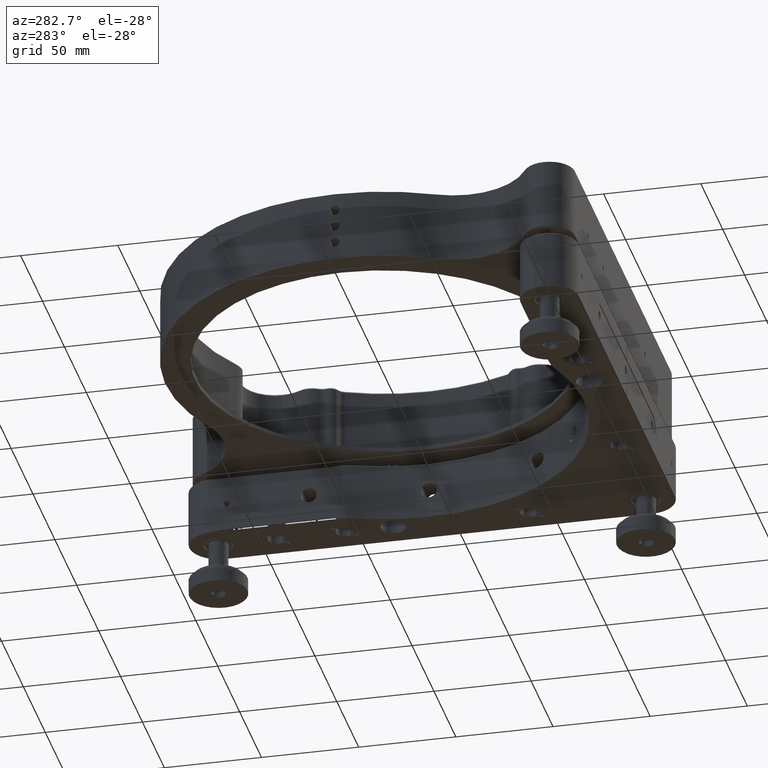
[diagram: clean part render]
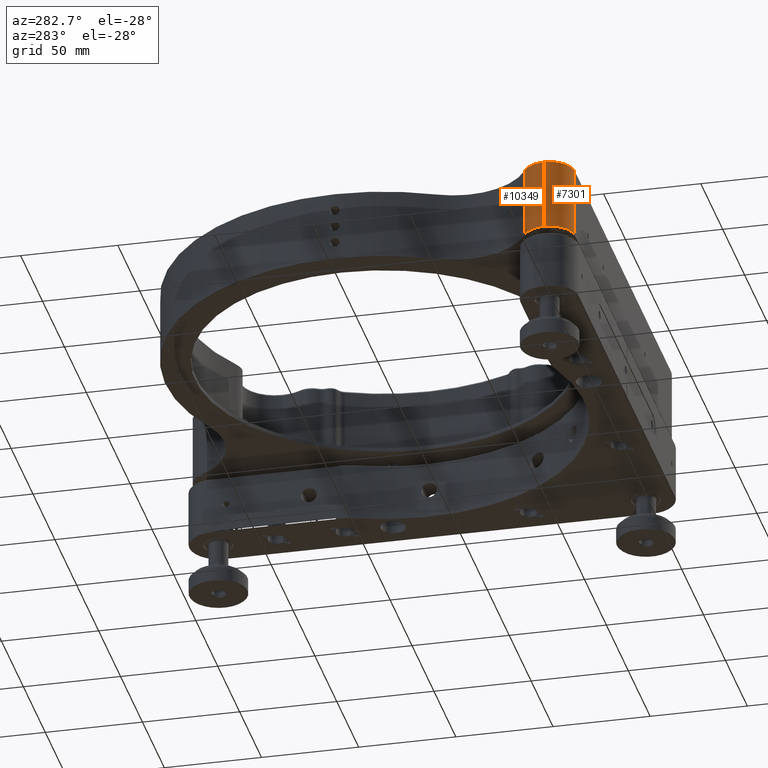
[diagram: same view with one multi-face feature highlighted, each face labeled with its STEP entity id]
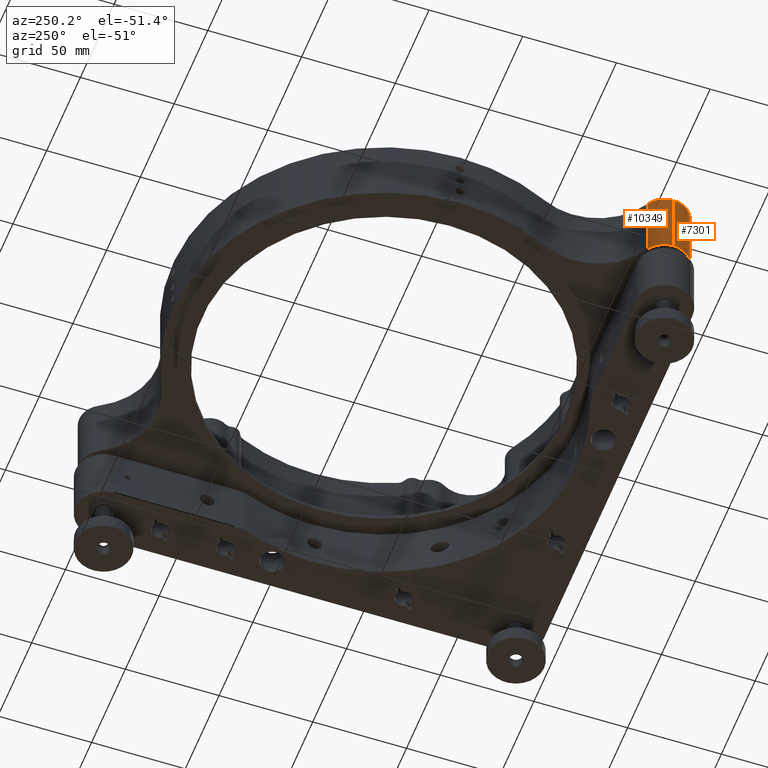
[diagram: same view with one multi-face feature highlighted, each face labeled with its STEP entity id]
A machine part, auxiliary view. The highlighted faces form ONE feature: a constant-radius fillet chain: 2 tangent blend faces with common blend radius 13 mm. The faces share edges in the B-rep.
A second angle (auxiliary view) of the same feature is appended — it is thin or edge-on in the first view.
Their STEP definitions:
[1] entity #10349 (Cylinder):
#575 = VECTOR ( 'NONE', #12259, 1000.000000000000000 ) ;
#685 = EDGE_LOOP ( 'NONE', ( #14081, #1161, #9410, #10914 ) ) ;
#799 = VERTEX_POINT ( 'NONE', #11087 ) ;
#840 = AXIS2_PLACEMENT_3D ( 'NONE', #7386, #8277, #6172 ) ;
#1161 = ORIENTED_EDGE ( 'NONE', *, *, #6773, .F. ) ;
#1786 = AXIS2_PLACEMENT_3D ( 'NONE', #13748, #3901, #8294 ) ;
#2347 = EDGE_CURVE ( 'NONE', #6020, #799, #3435, .T. ) ;
#3435 = LINE ( 'NONE', #10047, #575 ) ;
#3636 = CIRCLE ( 'NONE', #1786, 12.99999999999995559 ) ;
#3808 = DIRECTION ( 'NONE',  ( -4.973263948100216774E-30, -1.224646799147301438E-16, -1.000000000000000000 ) ) ;
#3901 = DIRECTION ( 'NONE',  ( 4.973263948100216774E-30, 1.224646799147301438E-16, 1.000000000000000000 ) ) ;
#4450 = VERTEX_POINT ( 'NONE', #4651 ) ;
#4651 = CARTESIAN_POINT ( 'NONE',  ( -247.9999999999988347, 15.00000000000073186, 56.50000000000000711 ) ) ;
#4707 = CARTESIAN_POINT ( 'NONE',  ( -247.9999999999987779, 15.00000000000073541, 56.50100000000001188 ) ) ;
#5196 = CIRCLE ( 'NONE', #840, 12.99999999999995559 ) ;
#5678 = FACE_OUTER_BOUND ( 'NONE', #685, .T. ) ;
#5945 = AXIS2_PLACEMENT_3D ( 'NONE', #11423, #3808, #7915 ) ;
#6020 = VERTEX_POINT ( 'NONE', #10828 ) ;
#6172 = DIRECTION ( 'NONE',  ( 1.000000000000000000, 0.000000000000000000, 0.000000000000000000 ) ) ;
#6773 = EDGE_CURVE ( 'NONE', #6020, #4450, #3636, .T. ) ;
#7386 = CARTESIAN_POINT ( 'NONE',  ( -234.9999999999988347, 15.00000000000099831, 20.00000000000008171 ) ) ;
#7915 = DIRECTION ( 'NONE',  ( -1.000000000000000000, 0.000000000000000000, 0.000000000000000000 ) ) ;
#8277 = DIRECTION ( 'NONE',  ( 4.973263948100216774E-30, 1.224646799147301438E-16, 1.000000000000000000 ) ) ;
#8294 = DIRECTION ( 'NONE',  ( 1.000000000000000000, 0.000000000000000000, 0.000000000000000000 ) ) ;
#8900 = EDGE_CURVE ( 'NONE', #4450, #12418, #9229, .T. ) ;
#9229 = LINE ( 'NONE', #4707, #14145 ) ;
#9389 = EDGE_CURVE ( 'NONE', #799, #12418, #5196, .T. ) ;
#9410 = ORIENTED_EDGE ( 'NONE', *, *, #2347, .T. ) ;
#10047 = CARTESIAN_POINT ( 'NONE',  ( -241.3630215803100896, 26.33631140929493242, 56.50100000000001188 ) ) ;
#10141 = CYLINDRICAL_SURFACE ( 'NONE', #5945, 12.99999999999995559 ) ;
#10349 = ADVANCED_FACE ( 'NONE', ( #5678 ), #10141, .T. ) ;
#10480 = CARTESIAN_POINT ( 'NONE',  ( -247.9999999999988347, 15.00000000000073186, 20.00000000000008171 ) ) ;
#10828 = CARTESIAN_POINT ( 'NONE',  ( -241.3630215803100896, 26.33631140929493242, 56.50000000000000711 ) ) ;
#10914 = ORIENTED_EDGE ( 'NONE', *, *, #9389, .T. ) ;
#11087 = CARTESIAN_POINT ( 'NONE',  ( -241.3630215803100896, 26.33631140929500347, 20.00000000000001066 ) ) ;
#11423 = CARTESIAN_POINT ( 'NONE',  ( -234.9999999999988347, 15.00000000000073541, 56.50100000000001188 ) ) ;
#12259 = DIRECTION ( 'NONE',  ( -4.973263948100216774E-30, -1.224646799147301438E-16, -1.000000000000000000 ) ) ;
#12418 = VERTEX_POINT ( 'NONE', #10480 ) ;
#12531 = DIRECTION ( 'NONE',  ( -4.973263948100216774E-30, -1.224646799147301438E-16, -1.000000000000000000 ) ) ;
#13748 = CARTESIAN_POINT ( 'NONE',  ( -234.9999999999988347, 15.00000000000073541, 56.50000000000000711 ) ) ;
#14081 = ORIENTED_EDGE ( 'NONE', *, *, #8900, .F. ) ;
#14145 = VECTOR ( 'NONE', #12531, 1000.000000000000000 ) ;
[2] entity #7301 (Cylinder):
#193 = DIRECTION ( 'NONE',  ( 4.973263948100216774E-30, 1.224646799147301438E-16, 1.000000000000000000 ) ) ;
#247 = CARTESIAN_POINT ( 'NONE',  ( -234.9999999999988347, 15.00000000000099831, 20.00000000000008171 ) ) ;
#1091 = VERTEX_POINT ( 'NONE', #8657 ) ;
#1166 = CYLINDRICAL_SURFACE ( 'NONE', #13652, 12.99999999999995559 ) ;
#1273 = DIRECTION ( 'NONE',  ( -4.973263948100216774E-30, -1.224646799147301438E-16, -1.000000000000000000 ) ) ;
#1843 = VECTOR ( 'NONE', #1273, 1000.000000000000000 ) ;
#2330 = EDGE_CURVE ( 'NONE', #4450, #1091, #9377, .T. ) ;
#2620 = EDGE_LOOP ( 'NONE', ( #9687, #7879, #13957, #12135 ) ) ;
#4063 = CARTESIAN_POINT ( 'NONE',  ( -234.9999999999988347, 15.00000000000073541, 56.50000000000000711 ) ) ;
#4450 = VERTEX_POINT ( 'NONE', #4651 ) ;
#4545 = FACE_OUTER_BOUND ( 'NONE', #2620, .T. ) ;
#4651 = CARTESIAN_POINT ( 'NONE',  ( -247.9999999999988347, 15.00000000000073186, 56.50000000000000711 ) ) ;
#4707 = CARTESIAN_POINT ( 'NONE',  ( -247.9999999999987779, 15.00000000000073541, 56.50100000000001188 ) ) ;
#5544 = CARTESIAN_POINT ( 'NONE',  ( -234.9999999999988347, 15.00000000000073541, 56.50100000000001188 ) ) ;
#5650 = DIRECTION ( 'NONE',  ( 1.000000000000000000, 0.000000000000000000, 0.000000000000000000 ) ) ;
#6402 = DIRECTION ( 'NONE',  ( -1.000000000000000000, 0.000000000000000000, 0.000000000000000000 ) ) ;
#6628 = VERTEX_POINT ( 'NONE', #11161 ) ;
#6882 = AXIS2_PLACEMENT_3D ( 'NONE', #247, #7788, #11078 ) ;
#6996 = AXIS2_PLACEMENT_3D ( 'NONE', #4063, #193, #5650 ) ;
#7301 = ADVANCED_FACE ( 'NONE', ( #4545 ), #1166, .T. ) ;
#7788 = DIRECTION ( 'NONE',  ( 4.973263948100216774E-30, 1.224646799147301438E-16, 1.000000000000000000 ) ) ;
#7819 = CIRCLE ( 'NONE', #6882, 12.99999999999995559 ) ;
#7879 = ORIENTED_EDGE ( 'NONE', *, *, #8900, .T. ) ;
#8027 = CARTESIAN_POINT ( 'NONE',  ( -234.9999999999988347, 2.000000000000723421, 56.50100000000001188 ) ) ;
#8657 = CARTESIAN_POINT ( 'NONE',  ( -234.9999999999988347, 2.000000000000723421, 56.50000000000000711 ) ) ;
#8900 = EDGE_CURVE ( 'NONE', #4450, #12418, #9229, .T. ) ;
#8941 = DIRECTION ( 'NONE',  ( -4.973263948100216774E-30, -1.224646799147301438E-16, -1.000000000000000000 ) ) ;
#9229 = LINE ( 'NONE', #4707, #14145 ) ;
#9377 = CIRCLE ( 'NONE', #6996, 12.99999999999995559 ) ;
#9687 = ORIENTED_EDGE ( 'NONE', *, *, #2330, .F. ) ;
#10480 = CARTESIAN_POINT ( 'NONE',  ( -247.9999999999988347, 15.00000000000073186, 20.00000000000008171 ) ) ;
#11078 = DIRECTION ( 'NONE',  ( 1.000000000000000000, 0.000000000000000000, 0.000000000000000000 ) ) ;
#11112 = EDGE_CURVE ( 'NONE', #1091, #6628, #12330, .T. ) ;
#11161 = CARTESIAN_POINT ( 'NONE',  ( -234.9999999999988347, 2.000000000000987210, 20.00000000000001421 ) ) ;
#11403 = EDGE_CURVE ( 'NONE', #12418, #6628, #7819, .T. ) ;
#12135 = ORIENTED_EDGE ( 'NONE', *, *, #11112, .F. ) ;
#12330 = LINE ( 'NONE', #8027, #1843 ) ;
#12418 = VERTEX_POINT ( 'NONE', #10480 ) ;
#12531 = DIRECTION ( 'NONE',  ( -4.973263948100216774E-30, -1.224646799147301438E-16, -1.000000000000000000 ) ) ;
#13652 = AXIS2_PLACEMENT_3D ( 'NONE', #5544, #8941, #6402 ) ;
#13957 = ORIENTED_EDGE ( 'NONE', *, *, #11403, .T. ) ;
#14145 = VECTOR ( 'NONE', #12531, 1000.000000000000000 ) ;